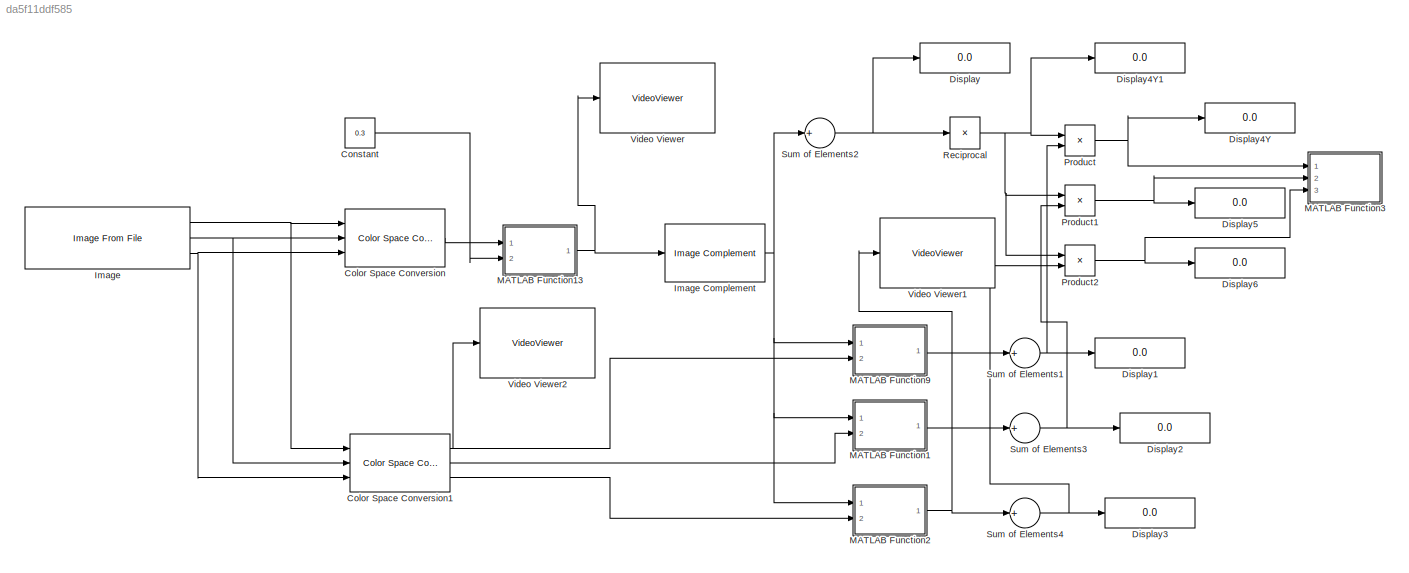
MODEL slx_da5f11ddf585
KIND model
CONFIG AbsTol = auto
CONFIG FixedStep = auto
CONFIG MaxStep = auto
CONFIG MinStep = auto
CONFIG RelTol = 1e-3
CONFIG SampleTimeConstraint = Unconstrained
CONFIG Solver = VariableStepAuto
CONFIG SolverMode = Auto
CONFIG SolverName = VariableStepAuto
CONFIG StartTime = 0.0
CONFIG StopTime = 0
BLOCK [Reference] Color Space Conversion  REF=visionconversions/Color Space
 Conversion
  Ports = [3, 1]
  SourceBlock = visionconversions/Color Space\n Conversion
  SourceType = Color Space Conversion
BLOCK [Reference] Color Space Conversion1  REF=visionconversions/Color Space
 Conversion
  Ports = [3, 3]
  SourceBlock = visionconversions/Color Space\n Conversion
  SourceType = Color Space Conversion
BLOCK [Constant] Constant
  OutDataTypeStr = double
  SampleTime = 1
  Value = 0.3
BLOCK [Display] Display
  Decimation = 1
  Ports = [1]
BLOCK [Display] Display1
  Decimation = 1
  Ports = [1]
BLOCK [Display] Display2
  Decimation = 1
  Ports = [1]
BLOCK [Display] Display3
  Decimation = 1
  Ports = [1]
BLOCK [Display] Display4Y
  Decimation = 1
  Ports = [1]
BLOCK [Display] Display4Y1
  Decimation = 1
  Ports = [1]
BLOCK [Display] Display5
  Decimation = 1
  Ports = [1]
BLOCK [Display] Display6
  Decimation = 1
  Ports = [1]
BLOCK [Reference] Image   REF=visionsources/Image From File
  Ports = [0, 3]
  SourceBlock = visionsources/Image From File
  SourceType = Image From File
  Tag = vipblks_nd
BLOCK [Reference] Image Complement  REF=visionconversions/Image Complement
  Ports = [1, 1]
  SourceBlock = visionconversions/Image Complement
  SourceType = Image Complement
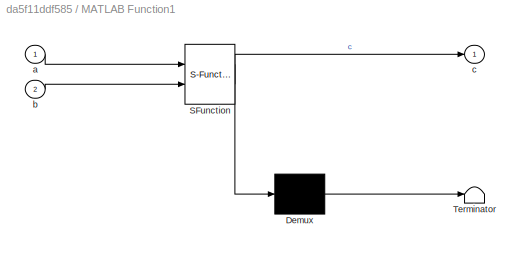
BLOCK [SubSystem] MATLAB Function1
  ErrorFcn = Stateflow.Translate.translate
  PermitHierarchicalResolution = ExplicitOnly
  Ports = [2, 1]
  RequestExecContextInheritance = off
  SFBlockType = MATLAB Function
  TreatAsAtomicUnit = on
  Variant = off
BLOCK [Demux] MATLAB Function1/ Demux 
  Outputs = 1
  Ports = [1, 1]
BLOCK [S-Function] MATLAB Function1/ SFunction 
  EnableBusSupport = on
  FunctionName = sf_sfun
  PortCounts = [2 2]
  Ports = [2, 2]
  SFunctionDeploymentMode = off
  Tag = Stateflow S-Function CalculateAvgColors 1
BLOCK [Terminator] MATLAB Function1/ Terminator 
BLOCK [Inport] MATLAB Function1/a
  IconDisplay = Port number
BLOCK [Inport] MATLAB Function1/b
  IconDisplay = Port number
  Port = 2
BLOCK [Outport] MATLAB Function1/c
  IconDisplay = Port number
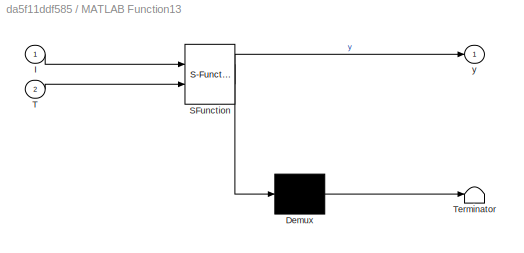
BLOCK [SubSystem] MATLAB Function13
  ErrorFcn = Stateflow.Translate.translate
  PermitHierarchicalResolution = ExplicitOnly
  Ports = [2, 1]
  RequestExecContextInheritance = off
  SFBlockType = MATLAB Function
  TreatAsAtomicUnit = on
  Variant = off
BLOCK [Demux] MATLAB Function13/ Demux 
  Outputs = 1
  Ports = [1, 1]
BLOCK [S-Function] MATLAB Function13/ SFunction 
  EnableBusSupport = on
  FunctionName = sf_sfun
  PortCounts = [2 2]
  Ports = [2, 2]
  SFunctionDeploymentMode = off
  Tag = Stateflow S-Function CalculateAvgColors 14
BLOCK [Terminator] MATLAB Function13/ Terminator 
BLOCK [Inport] MATLAB Function13/I
  IconDisplay = Port number
BLOCK [Inport] MATLAB Function13/T
  IconDisplay = Port number
  Port = 2
BLOCK [Outport] MATLAB Function13/y
  IconDisplay = Port number
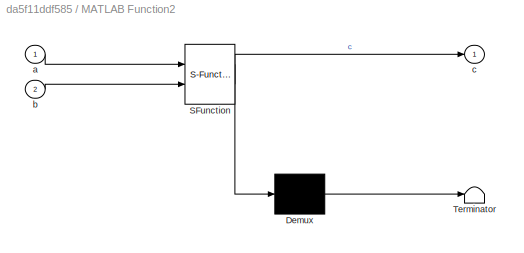
BLOCK [SubSystem] MATLAB Function2
  ErrorFcn = Stateflow.Translate.translate
  PermitHierarchicalResolution = ExplicitOnly
  Ports = [2, 1]
  RequestExecContextInheritance = off
  SFBlockType = MATLAB Function
  TreatAsAtomicUnit = on
  Variant = off
BLOCK [Demux] MATLAB Function2/ Demux 
  Outputs = 1
  Ports = [1, 1]
BLOCK [S-Function] MATLAB Function2/ SFunction 
  EnableBusSupport = on
  FunctionName = sf_sfun
  PortCounts = [2 2]
  Ports = [2, 2]
  SFunctionDeploymentMode = off
  Tag = Stateflow S-Function CalculateAvgColors 2
BLOCK [Terminator] MATLAB Function2/ Terminator 
BLOCK [Inport] MATLAB Function2/a
  IconDisplay = Port number
BLOCK [Inport] MATLAB Function2/b
  IconDisplay = Port number
  Port = 2
BLOCK [Outport] MATLAB Function2/c
  IconDisplay = Port number
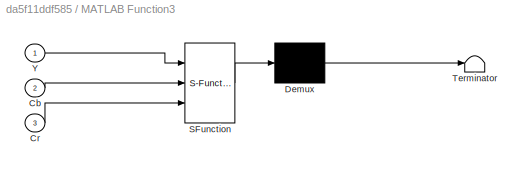
BLOCK [SubSystem] MATLAB Function3
  ErrorFcn = Stateflow.Translate.translate
  PermitHierarchicalResolution = ExplicitOnly
  Ports = [3]
  RequestExecContextInheritance = off
  SFBlockType = MATLAB Function
  TreatAsAtomicUnit = on
  Variant = off
BLOCK [Demux] MATLAB Function3/ Demux 
  Outputs = 1
  Ports = [1, 1]
BLOCK [S-Function] MATLAB Function3/ SFunction 
  EnableBusSupport = on
  FunctionName = sf_sfun
  PortCounts = [3 1]
  Ports = [3, 1]
  SFunctionDeploymentMode = off
  Tag = Stateflow S-Function CalculateAvgColors 3
BLOCK [Terminator] MATLAB Function3/ Terminator 
BLOCK [Inport] MATLAB Function3/Cb
  IconDisplay = Port number
  Port = 2
BLOCK [Inport] MATLAB Function3/Cr
  IconDisplay = Port number
  Port = 3
BLOCK [Inport] MATLAB Function3/Y
  IconDisplay = Port number
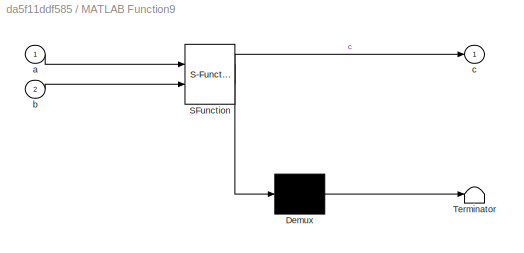
BLOCK [SubSystem] MATLAB Function9
  ErrorFcn = Stateflow.Translate.translate
  PermitHierarchicalResolution = ExplicitOnly
  Ports = [2, 1]
  RequestExecContextInheritance = off
  SFBlockType = MATLAB Function
  TreatAsAtomicUnit = on
  Variant = off
BLOCK [Demux] MATLAB Function9/ Demux 
  Outputs = 1
  Ports = [1, 1]
BLOCK [S-Function] MATLAB Function9/ SFunction 
  EnableBusSupport = on
  FunctionName = sf_sfun
  PortCounts = [2 2]
  Ports = [2, 2]
  SFunctionDeploymentMode = off
  Tag = Stateflow S-Function CalculateAvgColors 16
BLOCK [Terminator] MATLAB Function9/ Terminator 
BLOCK [Inport] MATLAB Function9/a
  IconDisplay = Port number
BLOCK [Inport] MATLAB Function9/b
  IconDisplay = Port number
  Port = 2
BLOCK [Outport] MATLAB Function9/c
  IconDisplay = Port number
BLOCK [Product] Product
  InputSameDT = off
  OutDataTypeStr = double
  Ports = [2, 1]
  RndMeth = Floor
  SaturateOnIntegerOverflow = off
BLOCK [Product] Product1
  InputSameDT = off
  OutDataTypeStr = double
  Ports = [2, 1]
  RndMeth = Floor
  SaturateOnIntegerOverflow = off
BLOCK [Product] Product2
  InputSameDT = off
  OutDataTypeStr = double
  Ports = [2, 1]
  RndMeth = Floor
  SaturateOnIntegerOverflow = off
BLOCK [Product] Reciprocal
  InputSameDT = off
  Inputs = /
  OutDataTypeStr = double
  Ports = [1, 1]
BLOCK [Sum] Sum of Elements1
  AccumDataTypeStr = double
  InputSameDT = off
  Inputs = +
  OutDataTypeStr = double
  Ports = [1, 1]
  SaturateOnIntegerOverflow = off
BLOCK [Sum] Sum of Elements2
  AccumDataTypeStr = double
  InputSameDT = off
  Inputs = +
  OutDataTypeStr = double
  Ports = [1, 1]
  RndMeth = Nearest
  SaturateOnIntegerOverflow = off
BLOCK [Sum] Sum of Elements3
  AccumDataTypeStr = double
  InputSameDT = off
  Inputs = +
  OutDataTypeStr = double
  Ports = [1, 1]
  SaturateOnIntegerOverflow = off
BLOCK [Sum] Sum of Elements4
  AccumDataTypeStr = double
  InputSameDT = off
  Inputs = +
  OutDataTypeStr = double
  Ports = [1, 1]
  SaturateOnIntegerOverflow = off
BLOCK [VideoViewer] Video Viewer
  FigPos = [1 726 1362 626]
  Ports = [1]
  ScopeSpecificationString = vipscopes.VideoViewerScopeCfg('CurrentConfiguration', extmgr.ConfigurationSet(extmgr.Configuration('Core','General UI',true),extmgr.Configuration('Core','Source UI',true),extmgr.Configuration('Sources','WiredSimulink',true),extmgr.Configuration('Visuals','Video',true),extmgr.Configuration('Tools','Image Navigation Tools',true),extmgr.Configuration('Tools','Image Tool',true),extmgr.Configuration('T...<+99ch>
BLOCK [VideoViewer] Video Viewer1
  FigPos = [613 734 667 611]
  Ports = [1]
  ScopeSpecificationString = vipscopes.VideoViewerScopeCfg('CurrentConfiguration', extmgr.ConfigurationSet(extmgr.Configuration('Core','General UI',true),extmgr.Configuration('Core','Source UI',true),extmgr.Configuration('Sources','WiredSimulink',true),extmgr.Configuration('Visuals','Video',true),extmgr.Configuration('Tools','Image Navigation Tools',true),extmgr.Configuration('Tools','Image Tool',true),extmgr.Configuration('T...<+74ch>
BLOCK [VideoViewer] Video Viewer2
  FigPos = [613 734 667 611]
  Ports = [1]
  ScopeSpecificationString = vipscopes.VideoViewerScopeCfg('CurrentConfiguration', extmgr.ConfigurationSet(extmgr.Configuration('Core','General UI',true),extmgr.Configuration('Core','Source UI',true),extmgr.Configuration('Sources','WiredSimulink',true),extmgr.Configuration('Visuals','Video',true),extmgr.Configuration('Tools','Image Navigation Tools',true),extmgr.Configuration('Tools','Image Tool',true),extmgr.Configuration('T...<+74ch>
NET Color Space Conversion1:1 -> MATLAB Function9:2, Video Viewer2:1
LINE Color Space Conversion1:2 -> MATLAB Function1:2
LINE Color Space Conversion1:3 -> MATLAB Function2:2
LINE Color Space Conversion:1 -> MATLAB Function13:1
LINE Constant:1 -> MATLAB Function13:2
NET Image :1 -> Color Space Conversion1:1, Color Space Conversion:1
NET Image :2 -> Color Space Conversion1:2, Color Space Conversion:2
NET Image :3 -> Color Space Conversion1:3, Color Space Conversion:3
NET Image Complement:1 -> MATLAB Function1:1, MATLAB Function2:1, MATLAB Function9:1, Sum of Elements2:1
NET MATLAB Function13:1 -> Image Complement:1, Video Viewer:1
LINE MATLAB Function1:1 -> Sum of Elements3:1
NET MATLAB Function2:1 -> Sum of Elements4:1, Video Viewer1:1
LINE MATLAB Function9:1 -> Sum of Elements1:1
NET Product1:1 -> Display5:1, MATLAB Function3:2
NET Product2:1 -> Display6:1, MATLAB Function3:3
NET Product:1 -> Display4Y:1, MATLAB Function3:1
NET Reciprocal:1 -> Display4Y1:1, Product1:1, Product2:1, Product:1
NET Sum of Elements1:1 -> Display1:1, Product:2
NET Sum of Elements2:1 -> Display:1, Reciprocal:1
NET Sum of Elements3:1 -> Display2:1, Product1:2
NET Sum of Elements4:1 -> Display3:1, Product2:2
note: NET lines group one-source signal fan-out (src -> all destinations, sorted); 1:1 wires keep LINE
CHART MATLAB Function1 states=1 transitions=1
  STATE_LABEL 'eML_blk_kernel()'
  STATE_LABEL 'SCRIPT:\nfunction c = fcn(a,b)\n%#codegen\nc=uint8(a).*b;\nreturn'
CHART MATLAB Function2 states=1 transitions=1
  STATE_LABEL 'eML_blk_kernel()'
  STATE_LABEL 'SCRIPT:\nfunction c = fcn(a,b)\n%#codegen\nc=uint8(a).*uint8(b);\nreturn'
CHART MATLAB Function3 states=1 transitions=1
  STATE_LABEL 'eML_blk_kernel()'
  STATE_LABEL "SCRIPT:\nfunction fcn(Y,Cb,Cr)\ncoder.extrinsic('xlsread');\ncoder.extrinsic('size');\ncoder.extrinsic('num2str');\ncoder.extrinsic('strcat');\ncoder.extrinsic('xlswrite');\na = xlsread('E:\\testdata_blueLight.xlsx');\n% new data to write in file\nt = {Y,Cb,Cr};\nnRows=0;\n% last row with data in the file\nnRows = (size(a,1));\n\n\n% plus 1 to write in the next line (if you have an header it should be + 2)\nnRows ...<+288ch>"
CHART MATLAB Function13 states=1 transitions=1
  STATE_LABEL 'eML_blk_kernel()'
  STATE_LABEL "SCRIPT:\nfunction y = fcn(I,T)\n%#codegen\nBW = imbinarize(I,double(T));\ny = BW;\ncoder.extrinsic('display');\ndisplay(y);"
CHART MATLAB Function9 states=1 transitions=1
  STATE_LABEL 'eML_blk_kernel()'
  STATE_LABEL 'SCRIPT:\nfunction c = fcn(a,b)\n%#codegen\nc=uint8(a).*b;\ndisp(c)\nreturn'
